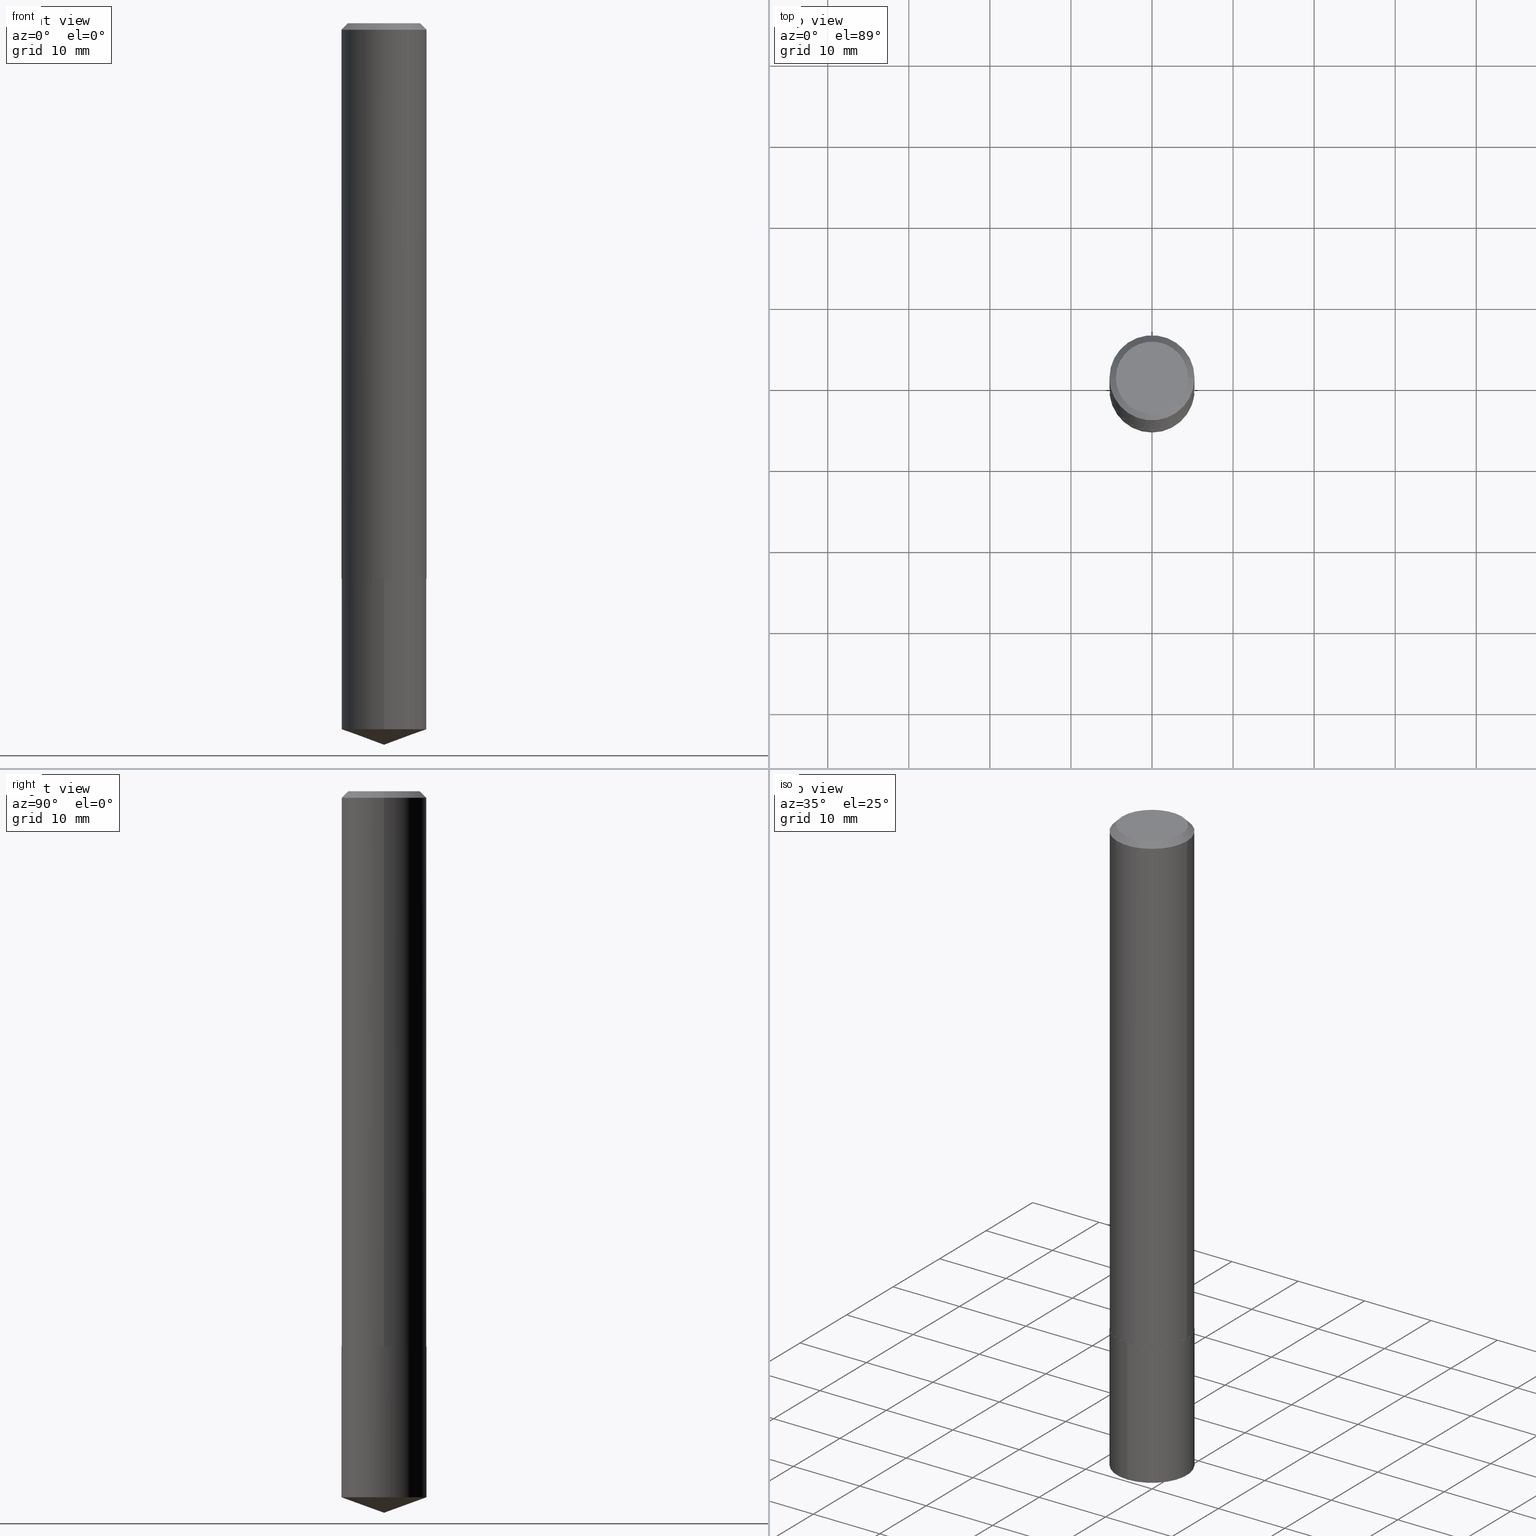
[diagram: canonical four-view strip — front | top / right | iso, engineering-drawing reading convention]
A machine part, canonical four-view strip (front | top / right | iso — engineering-drawing reading convention). The complete STEP part file that produces these views, byte-faithful:
ISO-10303-21;
HEADER;
FILE_DESCRIPTION (( 'STEP AP203' ),
    '1' );
FILE_NAME ('66038.STEP',
    '2024-04-23T12:50:00',
    ( '' ),
    ( '' ),
    'SwSTEP 2.0',
    'SolidWorks 2023',
    '' );
FILE_SCHEMA (( 'CONFIG_CONTROL_DESIGN' ));
ENDSEC;

DATA;
#1 = CALENDAR_DATE ( 2024, 23, 4 ) ;
#2 = ORIENTED_EDGE ( 'NONE', *, *, #63, .F. ) ;
#3 = VECTOR ( 'NONE', #378, 39.37007874015748143 ) ;
#4 = APPROVAL_ROLE ( '' ) ;
#5 = VERTEX_POINT ( 'NONE', #213 ) ;
#6 = COORDINATED_UNIVERSAL_TIME_OFFSET ( 5, 0, .BEHIND. ) ;
#7 = VERTEX_POINT ( 'NONE', #127 ) ;
#8 = ORIENTED_EDGE ( 'NONE', *, *, #160, .T. ) ;
#9 = DATE_AND_TIME ( #37, #111 ) ;
#10 = APPLICATION_CONTEXT ( 'configuration controlled 3d designs of mechanical parts and assemblies' ) ;
#11 = AXIS2_PLACEMENT_3D ( 'NONE', #209, #334, #274 ) ;
#12 = ORIENTED_EDGE ( 'NONE', *, *, #95, .T. ) ;
#13 = CC_DESIGN_PERSON_AND_ORGANIZATION_ASSIGNMENT ( #245, #370, ( #133 ) ) ;
#14 = FACE_OUTER_BOUND ( 'NONE', #147, .T. ) ;
#15 = DIRECTION ( 'NONE',  ( -2.440808573985819883E-29, 3.498155056596511424E-15, 1.000000000000000000 ) ) ;
#16 = DIRECTION ( 'NONE',  ( -6.982962677686265133E-15, -1.000000000000000000, 2.643297526525653668E-15 ) ) ;
#17 = CONICAL_SURFACE ( 'NONE', #261, 0.2067000000000003279, 0.7853981633972092480 ) ;
#18 = CARTESIAN_POINT ( 'NONE',  ( 0.2067000000000003279, -1.085745951940052607E-14, -2.696299999999999475 ) ) ;
#19 = FACE_OUTER_BOUND ( 'NONE', #249, .T. ) ;
#20 = CARTESIAN_POINT ( 'NONE',  ( -0.2067000000000000226, 1.334269593638902312E-15, -0.03125000000000022898 ) ) ;
#21 = EDGE_LOOP ( 'NONE', ( #67, #27, #238, #195 ) ) ;
#22 = EDGE_CURVE ( 'NONE', #235, #34, #89, .T. ) ;
#23 = FACE_OUTER_BOUND ( 'NONE', #311, .T. ) ;
#24 = DIRECTION ( 'NONE',  ( -2.445468806185136597E-29, 3.491481338843145583E-15, 1.000000000000000000 ) ) ;
#25 = CARTESIAN_POINT ( 'NONE',  ( 6.594940276520074658E-29, -9.415826874592193991E-15, -2.696799999999999642 ) ) ;
#26 = LINE ( 'NONE', #55, #351 ) ;
#27 = ORIENTED_EDGE ( 'NONE', *, *, #84, .T. ) ;
#28 = MANIFOLD_SOLID_BREP ( 'Body-Move/Copy2[1]', #39 ) ;
#29 = MECHANICAL_CONTEXT ( 'NONE', #10, 'mechanical' ) ;
#30 = ORIENTED_EDGE ( 'NONE', *, *, #256, .T. ) ;
#31 = EDGE_CURVE ( 'NONE', #235, #5, #341, .T. ) ;
#32 = DESIGN_CONTEXT ( 'detailed design', #192, 'design' ) ;
#33 = DATE_TIME_ROLE ( 'creation_date' ) ;
#34 = VERTEX_POINT ( 'NONE', #156 ) ;
#35 = APPROVAL_DATE_TIME ( #9, #45 ) ;
#36 = DIRECTION ( 'NONE',  ( 1.000000000000000000, -6.982962677686269077E-15, 0.000000000000000000 ) ) ;
#37 = CALENDAR_DATE ( 2024, 23, 4 ) ;
#38 = DIRECTION ( 'NONE',  ( -2.445468806185136597E-29, 3.491481338843145583E-15, 1.000000000000000000 ) ) ;
#39 = CLOSED_SHELL ( 'NONE', ( #201, #190, #171, #119, #240 ) ) ;
#40 = APPROVAL_PERSON_ORGANIZATION ( #342, #284, #360 ) ;
#41 = VERTEX_POINT ( 'NONE', #73 ) ;
#42 = DIMENSIONAL_EXPONENTS ( 1.000000000000000000, 0.000000000000000000, 0.000000000000000000, 0.000000000000000000, 0.000000000000000000, 0.000000000000000000, 0.000000000000000000 ) ;
#43 = CARTESIAN_POINT ( 'NONE',  ( 0.000000000000000000, 0.000000000000000000, 0.000000000000000000 ) ) ;
#44 = CARTESIAN_POINT ( 'NONE',  ( 1.468691834816192917E-15, 0.2066999999999905857, -2.696800000000000086 ) ) ;
#45 = APPROVAL ( #69, 'UNSPECIFIED' ) ;
#46 = DIRECTION ( 'NONE',  ( 0.7071067811863784858, -2.468850131080486462E-15, 0.7071067811867165487 ) ) ;
#47 = AXIS2_PLACEMENT_3D ( 'NONE', #185, #307, #36 ) ;
#48 = AXIS2_PLACEMENT_3D ( 'NONE', #200, #289, #93 ) ;
#49 = EDGE_LOOP ( 'NONE', ( #242, #150, #64, #343 ) ) ;
#50 = DIRECTION ( 'NONE',  ( -2.440808573985819883E-29, 3.498155056596511424E-15, 1.000000000000000000 ) ) ;
#51 = CC_DESIGN_PERSON_AND_ORGANIZATION_ASSIGNMENT ( #340, #362, ( #327 ) ) ;
#52 = DIRECTION ( 'NONE',  ( 6.676917655467975229E-15, 0.9396926207859106484, 0.3420201433256624401 ) ) ;
#53 = ADVANCED_FACE ( 'NONE', ( #14 ), #17, .T. ) ;
#54 = EDGE_LOOP ( 'NONE', ( #287, #159 ) ) ;
#55 = CARTESIAN_POINT ( 'NONE',  ( -1.443378385477685346E-15, -0.2067000000000094317, -2.696799999999998754 ) ) ;
#56 = CIRCLE ( 'NONE', #281, 0.2067000000000000226 ) ;
#57 = LOCAL_TIME ( 8, 50, 0.000000000000000000, #241 ) ;
#58 =( LENGTH_UNIT ( ) NAMED_UNIT ( * ) SI_UNIT ( $, .METRE. ) );
#59 = LENGTH_MEASURE_WITH_UNIT ( LENGTH_MEASURE( 0.02539999999999999897 ), #58 );
#60 = CARTESIAN_POINT ( 'NONE',  ( 0.2067000000000000226, -1.527173727978224681E-15, -0.03125000000000022898 ) ) ;
#61 = ORIENTED_EDGE ( 'NONE', *, *, #256, .F. ) ;
#62 = PERSON_AND_ORGANIZATION_ROLE ( 'creator' ) ;
#63 = EDGE_CURVE ( 'NONE', #189, #5, #122, .T. ) ;
#64 = ORIENTED_EDGE ( 'NONE', *, *, #106, .T. ) ;
#65 = EDGE_CURVE ( 'NONE', #319, #248, #367, .T. ) ;
#66 = APPLICATION_PROTOCOL_DEFINITION ( 'international standard', 'config_control_design', 1994, #10 ) ;
#67 = ORIENTED_EDGE ( 'NONE', *, *, #269, .T. ) ;
#68 = CONICAL_SURFACE ( 'NONE', #128, 108.1684023407342750, 1.221730476396033938 ) ;
#69 = APPROVAL_STATUS ( 'not_yet_approved' ) ;
#70 = ORIENTED_EDGE ( 'NONE', *, *, #148, .F. ) ;
#71 = ADVANCED_BREP_SHAPE_REPRESENTATION ( '66038', ( #28, #290, #11 ), #76 ) ;
#72 = APPROVAL_DATE_TIME ( #308, #284 ) ;
#73 = CARTESIAN_POINT ( 'NONE',  ( 0.1754499999999999948, -1.365424050843619950E-15, 1.085037064045460746E-17 ) ) ;
#74 = APPROVAL_STATUS ( 'not_yet_approved' ) ;
#75 = ORIENTED_EDGE ( 'NONE', *, *, #199, .T. ) ;
#76 =( GEOMETRIC_REPRESENTATION_CONTEXT ( 3 ) GLOBAL_UNCERTAINTY_ASSIGNED_CONTEXT ( ( #357 ) ) GLOBAL_UNIT_ASSIGNED_CONTEXT ( ( #173, #179, #218 ) ) REPRESENTATION_CONTEXT ( 'NONE', 'WORKASPACE' ) );
#77 = LINE ( 'NONE', #138, #169 ) ;
#78 = PRODUCT_DEFINITION_SHAPE ( 'NONE', 'NONE',  #327 ) ;
#79 = LINE ( 'NONE', #105, #247 ) ;
#80 = DIRECTION ( 'NONE',  ( -6.982962677686265133E-15, -1.000000000000000000, 2.643297526525653668E-15 ) ) ;
#81 = CARTESIAN_POINT ( 'NONE',  ( -0.2062000000000003830, -7.948038526280752696E-15, -2.696799999999999642 ) ) ;
#82 = AXIS2_PLACEMENT_3D ( 'NONE', #193, #15, #16 ) ;
#83 = AXIS2_PLACEMENT_3D ( 'NONE', #25, #116, #388 ) ;
#84 = EDGE_CURVE ( 'NONE', #319, #153, #220, .T. ) ;
#85 = EDGE_CURVE ( 'NONE', #363, #153, #355, .T. ) ;
#86 = CARTESIAN_POINT ( 'NONE',  ( -8.752990887088919443E-28, 1.254834522027134692E-13, 35.86617874015747987 ) ) ;
#87 = FACE_OUTER_BOUND ( 'NONE', #103, .T. ) ;
#88 = CARTESIAN_POINT ( 'NONE',  ( 0.000000000000000000, 0.000000000000000000, 0.000000000000000000 ) ) ;
#89 = CIRCLE ( 'NONE', #47, 0.2067000000000003279 ) ;
#90 = AXIS2_PLACEMENT_3D ( 'NONE', #262, #145, #265 ) ;
#91 = PRODUCT_RELATED_PRODUCT_CATEGORY ( 'detail', '', ( #133 ) ) ;
#92 = CARTESIAN_POINT ( 'NONE',  ( -1.443378385477685346E-15, -0.2067000000000094317, -2.696799999999998754 ) ) ;
#93 = DIRECTION ( 'NONE',  ( -6.982962677686265133E-15, -1.000000000000000000, 2.643297526525653668E-15 ) ) ;
#94 = CIRCLE ( 'NONE', #115, 0.1754499999999999948 ) ;
#95 = EDGE_CURVE ( 'NONE', #7, #248, #77, .T. ) ;
#96 = EDGE_LOOP ( 'NONE', ( #301, #30 ) ) ;
#97 = PERSON_AND_ORGANIZATION ( #293, #361 ) ;
#98 = EDGE_LOOP ( 'NONE', ( #187, #371, #298, #70 ) ) ;
#99 = APPROVAL_DATE_TIME ( #302, #255 ) ;
#100 = EDGE_LOOP ( 'NONE', ( #207, #75, #296, #2 ) ) ;
#101 = VECTOR ( 'NONE', #359, 39.37007874015748143 ) ;
#102 = PERSON_AND_ORGANIZATION_ROLE ( 'design_supplier' ) ;
#103 = EDGE_LOOP ( 'NONE', ( #333, #126 ) ) ;
#104 = DIRECTION ( 'NONE',  ( 1.000000000000000000, -6.982962677686265133E-15, 0.000000000000000000 ) ) ;
#105 = CARTESIAN_POINT ( 'NONE',  ( 8.577704998816139616E-29, -1.222119013873396115E-14, -3.503899999999999793 ) ) ;
#106 = EDGE_CURVE ( 'NONE', #181, #189, #109, .T. ) ;
#107 = DIRECTION ( 'NONE',  ( -2.445468806185136597E-29, 3.491481338843145583E-15, 1.000000000000000000 ) ) ;
#108 = FACE_OUTER_BOUND ( 'NONE', #21, .T. ) ;
#109 = LINE ( 'NONE', #20, #3 ) ;
#110 = CARTESIAN_POINT ( 'NONE',  ( -2.653424293675663351E-46, 3.788386661064719012E-32, 1.085037064044555097E-17 ) ) ;
#111 = LOCAL_TIME ( 8, 50, 0.000000000000000000, #306 ) ;
#112 = DIRECTION ( 'NONE',  ( -2.445468806185136597E-29, 3.491481338843145583E-15, 1.000000000000000000 ) ) ;
#113 = LINE ( 'NONE', #168, #263 ) ;
#114 = DIRECTION ( 'NONE',  ( -1.000000000000000000, 6.982962677686265922E-15, -4.876176775795935793E-29 ) ) ;
#115 = AXIS2_PLACEMENT_3D ( 'NONE', #231, #112, #230 ) ;
#116 = DIRECTION ( 'NONE',  ( 2.440808573985819603E-29, -3.498155056596511424E-15, -1.000000000000000000 ) ) ;
#117 = ORIENTED_EDGE ( 'NONE', *, *, #106, .F. ) ;
#118 = DIRECTION ( 'NONE',  ( -1.000000000000000000, 6.982962677686265133E-15, 0.000000000000000000 ) ) ;
#119 = ADVANCED_FACE ( 'NONE', ( #223 ), #280, .T. ) ;
#120 = ADVANCED_FACE ( 'NONE', ( #350 ), #140, .T. ) ;
#121 = CALENDAR_DATE ( 2024, 23, 4 ) ;
#122 = CIRCLE ( 'NONE', #317, 0.2067000000000000226 ) ;
#123 = AXIS2_PLACEMENT_3D ( 'NONE', #194, #107, #250 ) ;
#124 = ORIENTED_EDGE ( 'NONE', *, *, #217, .T. ) ;
#125 = APPROVAL_STATUS ( 'not_yet_approved' ) ;
#126 = ORIENTED_EDGE ( 'NONE', *, *, #148, .T. ) ;
#127 = CARTESIAN_POINT ( 'NONE',  ( 8.552349162388914203E-29, -1.225718550280851513E-14, -3.503899999999999793 ) ) ;
#128 = AXIS2_PLACEMENT_3D ( 'NONE', #253, #50, #315 ) ;
#129 = AXIS2_PLACEMENT_3D ( 'NONE', #88, #174, #202 ) ;
#130 = ORIENTED_EDGE ( 'NONE', *, *, #373, .T. ) ;
#131 = CARTESIAN_POINT ( 'NONE',  ( 7.642090019328607041E-31, -1.091087918388490883E-16, -0.03125000000000022898 ) ) ;
#132 = EDGE_CURVE ( 'NONE', #7, #319, #79, .T. ) ;
#133 = PRODUCT ( '66038', '66038', '', ( #29 ) ) ;
#134 = CARTESIAN_POINT ( 'NONE',  ( 1.468691834816211061E-15, 0.2066999999999905857, -2.696800000000000086 ) ) ;
#135 = CONICAL_SURFACE ( 'NONE', #90, 0.2067000000000000226, 0.7853981633974446153 ) ;
#136 = PRODUCT_DEFINITION_FORMATION_WITH_SPECIFIED_SOURCE ( 'ANY', '', #133, .NOT_KNOWN. ) ;
#137 = FACE_OUTER_BOUND ( 'NONE', #366, .T. ) ;
#138 = CARTESIAN_POINT ( 'NONE',  ( 8.552349162388914203E-29, -1.225718550280851513E-14, -3.503899999999999793 ) ) ;
#139 = DIRECTION ( 'NONE',  ( -2.440808573985819883E-29, 3.498155056596511424E-15, 1.000000000000000000 ) ) ;
#140 = CYLINDRICAL_SURFACE ( 'NONE', #232, 0.2067000000000001336 ) ;
#141 = PLANE ( 'NONE',  #83 ) ;
#142 = DIRECTION ( 'NONE',  ( 2.445468806185136597E-29, -3.491481338843145583E-15, -1.000000000000000000 ) ) ;
#143 = CARTESIAN_POINT ( 'NONE',  ( 0.2067000000000003279, -1.085745951940052607E-14, -2.696299999999999475 ) ) ;
#144 = CIRCLE ( 'NONE', #48, 0.2067000000000000226 ) ;
#145 = DIRECTION ( 'NONE',  ( 2.445468806185136597E-29, -3.491481338843145583E-15, -1.000000000000000000 ) ) ;
#146 = ADVANCED_FACE ( 'NONE', ( #285 ), #161, .F. ) ;
#147 = EDGE_LOOP ( 'NONE', ( #124, #379, #331, #335 ) ) ;
#148 = EDGE_CURVE ( 'NONE', #153, #363, #221, .T. ) ;
#149 = VERTEX_POINT ( 'NONE', #81 ) ;
#150 = ORIENTED_EDGE ( 'NONE', *, *, #216, .F. ) ;
#151 = AXIS2_PLACEMENT_3D ( 'NONE', #316, #226, #348 ) ;
#152 = COORDINATED_UNIVERSAL_TIME_OFFSET ( 5, 0, .BEHIND. ) ;
#153 = VERTEX_POINT ( 'NONE', #134 ) ;
#154 = CC_DESIGN_DATE_AND_TIME_ASSIGNMENT ( #243, #365, ( #277 ) ) ;
#155 = SHAPE_DEFINITION_REPRESENTATION ( #78, #71 ) ;
#156 = CARTESIAN_POINT ( 'NONE',  ( -0.2067000000000003279, -7.945389299106642284E-15, -2.696299999999999475 ) ) ;
#157 = DIRECTION ( 'NONE',  ( 1.000000000000000000, -6.982962677686269077E-15, 0.000000000000000000 ) ) ;
#158 = VECTOR ( 'NONE', #162, 39.37007874015748143 ) ;
#159 = ORIENTED_EDGE ( 'NONE', *, *, #268, .F. ) ;
#160 = EDGE_CURVE ( 'NONE', #322, #235, #283, .T. ) ;
#161 = PLANE ( 'NONE',  #257 ) ;
#162 = DIRECTION ( 'NONE',  ( -2.440808573985819883E-29, 3.498155056596511424E-15, 1.000000000000000000 ) ) ;
#163 = CONICAL_SURFACE ( 'NONE', #175, 108.1684023407342750, 1.221730476396033938 ) ;
#164 = LOCAL_TIME ( 8, 50, 0.000000000000000000, #6 ) ;
#165 = DIRECTION ( 'NONE',  ( 1.000000000000000000, -6.982962677686265922E-15, 4.876176775795935793E-29 ) ) ;
#166 = CARTESIAN_POINT ( 'NONE',  ( -0.1754499999999999948, 1.279715197719478945E-15, 1.085037064043679184E-17 ) ) ;
#167 = DIRECTION ( 'NONE',  ( -2.445468806185136597E-29, 3.491481338843145583E-15, 1.000000000000000000 ) ) ;
#168 = CARTESIAN_POINT ( 'NONE',  ( -0.2067000000000001336, 1.468691834816128034E-15, -1.016743883155689846E-29 ) ) ;
#169 = VECTOR ( 'NONE', #225, 39.37007874015748854 ) ;
#170 = CC_DESIGN_APPROVAL ( #284, ( #136 ) ) ;
#171 = ADVANCED_FACE ( 'NONE', ( #137 ), #68, .T. ) ;
#172 = LINE ( 'NONE', #60, #288 ) ;
#173 =( CONVERSION_BASED_UNIT ( 'INCH', #59 ) LENGTH_UNIT ( ) NAMED_UNIT ( #42 ) );
#174 = DIRECTION ( 'NONE',  ( -2.445468806185136597E-29, 3.491481338843145583E-15, 1.000000000000000000 ) ) ;
#175 = AXIS2_PLACEMENT_3D ( 'NONE', #86, #254, #198 ) ;
#176 = CARTESIAN_POINT ( 'NONE',  ( -0.2067000000000003279, -7.945389299106642284E-15, -2.696299999999999475 ) ) ;
#177 = SECURITY_CLASSIFICATION_LEVEL ( 'unclassified' ) ;
#178 = ORIENTED_EDGE ( 'NONE', *, *, #344, .T. ) ;
#179 =( NAMED_UNIT ( * ) PLANE_ANGLE_UNIT ( ) SI_UNIT ( $, .RADIAN. ) );
#180 = CC_DESIGN_PERSON_AND_ORGANIZATION_ASSIGNMENT ( #97, #102, ( #136 ) ) ;
#181 = VERTEX_POINT ( 'NONE', #166 ) ;
#182 = CLOSED_SHELL ( 'NONE', ( #313, #383, #53, #146, #384, #120, #299, #314 ) ) ;
#183 = AXIS2_PLACEMENT_3D ( 'NONE', #389, #386, #114 ) ;
#184 = APPROVAL_ROLE ( '' ) ;
#185 = CARTESIAN_POINT ( 'NONE',  ( 6.593717542116981856E-29, -9.414081133922771698E-15, -2.696299999999999475 ) ) ;
#186 = CALENDAR_DATE ( 2024, 23, 4 ) ;
#187 = ORIENTED_EDGE ( 'NONE', *, *, #84, .F. ) ;
#188 = EDGE_CURVE ( 'NONE', #5, #189, #56, .T. ) ;
#189 = VERTEX_POINT ( 'NONE', #345 ) ;
#190 = ADVANCED_FACE ( 'NONE', ( #19 ), #163, .T. ) ;
#191 = DIRECTION ( 'NONE',  ( -2.440808573985819883E-29, 3.498155056596511424E-15, 1.000000000000000000 ) ) ;
#192 = APPLICATION_CONTEXT ( 'configuration controlled 3d designs of mechanical parts and assemblies' ) ;
#193 = CARTESIAN_POINT ( 'NONE',  ( 6.594940276520074658E-29, -9.415826874592193991E-15, -2.696799999999999642 ) ) ;
#194 = CARTESIAN_POINT ( 'NONE',  ( 6.593717542116981856E-29, -9.414081133922771698E-15, -2.696299999999999475 ) ) ;
#195 = ORIENTED_EDGE ( 'NONE', *, *, #330, .F. ) ;
#196 = LOCAL_TIME ( 8, 50, 0.000000000000000000, #310 ) ;
#197 = DIRECTION ( 'NONE',  ( -6.982962677686265133E-15, -1.000000000000000000, 2.643297526525653668E-15 ) ) ;
#198 = DIRECTION ( 'NONE',  ( -6.982962677686265133E-15, -1.000000000000000000, 3.555975582372802743E-15 ) ) ;
#199 = EDGE_CURVE ( 'NONE', #34, #235, #337, .T. ) ;
#200 = CARTESIAN_POINT ( 'NONE',  ( 8.381288385710751773E-29, -1.197601235476794621E-14, -3.428667352577176697 ) ) ;
#201 = ADVANCED_FACE ( 'NONE', ( #108 ), #380, .T. ) ;
#202 = DIRECTION ( 'NONE',  ( 1.000000000000000000, -6.982962677686266711E-15, 4.876176775795936914E-29 ) ) ;
#203 = DIRECTION ( 'NONE',  ( -2.445468806185136597E-29, 3.491481338843145583E-15, 1.000000000000000000 ) ) ;
#204 = PLANE ( 'NONE',  #183 ) ;
#205 = ORIENTED_EDGE ( 'NONE', *, *, #269, .F. ) ;
#206 = CARTESIAN_POINT ( 'NONE',  ( 0.2062000000000003830, -1.085571377873110535E-14, -2.696799999999999642 ) ) ;
#207 = ORIENTED_EDGE ( 'NONE', *, *, #373, .F. ) ;
#208 = AXIS2_PLACEMENT_3D ( 'NONE', #259, #203, #353 ) ;
#209 = CARTESIAN_POINT ( 'NONE',  ( 0.000000000000000000, 0.000000000000000000, 0.000000000000000000 ) ) ;
#210 = ORIENTED_EDGE ( 'NONE', *, *, #132, .F. ) ;
#211 = ORIENTED_EDGE ( 'NONE', *, *, #199, .F. ) ;
#212 = PERSON_AND_ORGANIZATION ( #293, #361 ) ;
#213 = CARTESIAN_POINT ( 'NONE',  ( 0.2067000000000000226, -1.552487177316600316E-15, -0.03125000000000022898 ) ) ;
#214 = CC_DESIGN_SECURITY_CLASSIFICATION ( #277, ( #136 ) ) ;
#215 = ORIENTED_EDGE ( 'NONE', *, *, #31, .F. ) ;
#216 = EDGE_CURVE ( 'NONE', #181, #41, #305, .T. ) ;
#217 = EDGE_CURVE ( 'NONE', #322, #149, #381, .T. ) ;
#218 =( NAMED_UNIT ( * ) SI_UNIT ( $, .STERADIAN. ) SOLID_ANGLE_UNIT ( ) );
#219 = CARTESIAN_POINT ( 'NONE',  ( 8.381288385710751773E-29, -1.197601235476794621E-14, -3.428667352577176697 ) ) ;
#220 = LINE ( 'NONE', #44, #158 ) ;
#221 = CIRCLE ( 'NONE', #82, 0.2067000000000000226 ) ;
#222 = APPROVAL_PERSON_ORGANIZATION ( #266, #255, #4 ) ;
#223 = FACE_OUTER_BOUND ( 'NONE', #98, .T. ) ;
#224 = CC_DESIGN_PERSON_AND_ORGANIZATION_ASSIGNMENT ( #336, #272, ( #277 ) ) ;
#225 = DIRECTION ( 'NONE',  ( -6.561838499445207162E-15, -0.9396926207859082059, 0.3420201433256689350 ) ) ;
#226 = DIRECTION ( 'NONE',  ( -2.440808573985819883E-29, 3.498155056596511424E-15, 1.000000000000000000 ) ) ;
#227 = CC_DESIGN_APPROVAL ( #255, ( #327 ) ) ;
#228 = DIRECTION ( 'NONE',  ( -2.445468806185136597E-29, 3.491481338843145583E-15, 1.000000000000000000 ) ) ;
#229 = EDGE_CURVE ( 'NONE', #149, #34, #291, .T. ) ;
#230 = DIRECTION ( 'NONE',  ( 1.000000000000000000, -6.982962677686267499E-15, 4.875944331572354800E-29 ) ) ;
#231 = CARTESIAN_POINT ( 'NONE',  ( -2.653424293675663351E-46, 3.788386661064719012E-32, 1.085037064044555097E-17 ) ) ;
#232 = AXIS2_PLACEMENT_3D ( 'NONE', #43, #352, #375 ) ;
#233 = AXIS2_PLACEMENT_3D ( 'NONE', #110, #228, #321 ) ;
#234 = FACE_OUTER_BOUND ( 'NONE', #96, .T. ) ;
#235 = VERTEX_POINT ( 'NONE', #143 ) ;
#236 = CARTESIAN_POINT ( 'NONE',  ( 6.593717542116981856E-29, -9.414081133922771698E-15, -2.696299999999999475 ) ) ;
#237 = DATE_AND_TIME ( #121, #196 ) ;
#238 = ORIENTED_EDGE ( 'NONE', *, *, #85, .F. ) ;
#239 = AXIS2_PLACEMENT_3D ( 'NONE', #260, #142, #118 ) ;
#240 = ADVANCED_FACE ( 'NONE', ( #87 ), #141, .F. ) ;
#241 = COORDINATED_UNIVERSAL_TIME_OFFSET ( 5, 0, .BEHIND. ) ;
#242 = ORIENTED_EDGE ( 'NONE', *, *, #344, .F. ) ;
#243 = DATE_AND_TIME ( #186, #164 ) ;
#244 = ORIENTED_EDGE ( 'NONE', *, *, #188, .T. ) ;
#245 = PERSON_AND_ORGANIZATION ( #293, #361 ) ;
#246 = CARTESIAN_POINT ( 'NONE',  ( 0.2067000000000001336, -1.443378385477752202E-15, 1.007905739557020761E-29 ) ) ;
#247 = VECTOR ( 'NONE', #52, 39.37007874015748143 ) ;
#248 = VERTEX_POINT ( 'NONE', #385 ) ;
#249 = EDGE_LOOP ( 'NONE', ( #273, #369, #205 ) ) ;
#250 = DIRECTION ( 'NONE',  ( 1.000000000000000000, -6.982962677686269077E-15, 0.000000000000000000 ) ) ;
#251 = AXIS2_PLACEMENT_3D ( 'NONE', #312, #191, #197 ) ;
#252 = CARTESIAN_POINT ( 'NONE',  ( 7.642090019328607041E-31, -1.091087918388490883E-16, -0.03125000000000022898 ) ) ;
#253 = CARTESIAN_POINT ( 'NONE',  ( -8.752990887088919443E-28, 1.254834522027134692E-13, 35.86617874015747987 ) ) ;
#254 = DIRECTION ( 'NONE',  ( -2.440808573985819883E-29, 3.498155056596511424E-15, 1.000000000000000000 ) ) ;
#255 = APPROVAL ( #74, 'UNSPECIFIED' ) ;
#256 = EDGE_CURVE ( 'NONE', #41, #181, #94, .T. ) ;
#257 = AXIS2_PLACEMENT_3D ( 'NONE', #279, #320, #165 ) ;
#258 = DIRECTION ( 'NONE',  ( -2.445468806185136877E-29, 3.491481338843145188E-15, 1.000000000000000000 ) ) ;
#259 = CARTESIAN_POINT ( 'NONE',  ( 6.594940276520074658E-29, -9.415826874592193991E-15, -2.696799999999999642 ) ) ;
#260 = CARTESIAN_POINT ( 'NONE',  ( 7.642090019328607041E-31, -1.091087918388490883E-16, -0.03125000000000022898 ) ) ;
#261 = AXIS2_PLACEMENT_3D ( 'NONE', #309, #38, #157 ) ;
#262 = CARTESIAN_POINT ( 'NONE',  ( 7.642090019328607041E-31, -1.091087918388490883E-16, -0.03125000000000022898 ) ) ;
#263 = VECTOR ( 'NONE', #258, 39.37007874015748143 ) ;
#264 = ORIENTED_EDGE ( 'NONE', *, *, #22, .T. ) ;
#265 = DIRECTION ( 'NONE',  ( -1.000000000000000000, 6.982962677686265133E-15, 0.000000000000000000 ) ) ;
#266 = PERSON_AND_ORGANIZATION ( #293, #361 ) ;
#267 = ORIENTED_EDGE ( 'NONE', *, *, #188, .F. ) ;
#268 = EDGE_CURVE ( 'NONE', #149, #322, #318, .T. ) ;
#269 = EDGE_CURVE ( 'NONE', #248, #319, #144, .T. ) ;
#270 = APPLICATION_PROTOCOL_DEFINITION ( 'international standard', 'config_control_design', 1994, #192 ) ;
#271 = EDGE_LOOP ( 'NONE', ( #264, #130, #267, #215 ) ) ;
#272 = PERSON_AND_ORGANIZATION_ROLE ( 'classification_officer' ) ;
#273 = ORIENTED_EDGE ( 'NONE', *, *, #95, .F. ) ;
#274 = DIRECTION ( 'NONE',  ( 1.000000000000000000, 0.000000000000000000, 0.000000000000000000 ) ) ;
#275 = ORIENTED_EDGE ( 'NONE', *, *, #65, .F. ) ;
#276 = DIRECTION ( 'NONE',  ( -2.445468806185136597E-29, 3.491481338843145583E-15, 1.000000000000000000 ) ) ;
#277 = SECURITY_CLASSIFICATION ( '', '', #177 ) ;
#278 = DIRECTION ( 'NONE',  ( -2.445468806185136877E-29, 3.491481338843145188E-15, 1.000000000000000000 ) ) ;
#279 = CARTESIAN_POINT ( 'NONE',  ( 6.594940276520074658E-29, -9.415826874592193991E-15, -2.696799999999999642 ) ) ;
#280 = CYLINDRICAL_SURFACE ( 'NONE', #151, 0.2067000000000000226 ) ;
#281 = AXIS2_PLACEMENT_3D ( 'NONE', #252, #167, #377 ) ;
#282 = AXIS2_PLACEMENT_3D ( 'NONE', #236, #297, #324 ) ;
#283 = LINE ( 'NONE', #18, #303 ) ;
#284 = APPROVAL ( #125, 'UNSPECIFIED' ) ;
#285 = FACE_OUTER_BOUND ( 'NONE', #54, .T. ) ;
#286 = DIRECTION ( 'NONE',  ( -2.440808573985819883E-29, 3.498155056596511424E-15, 1.000000000000000000 ) ) ;
#287 = ORIENTED_EDGE ( 'NONE', *, *, #217, .F. ) ;
#288 = VECTOR ( 'NONE', #358, 39.37007874015748143 ) ;
#289 = DIRECTION ( 'NONE',  ( -2.440808573985819883E-29, 3.498155056596511424E-15, 1.000000000000000000 ) ) ;
#290 = MANIFOLD_SOLID_BREP ( 'Body-Move/Copy2[2]', #182 ) ;
#291 = LINE ( 'NONE', #176, #101 ) ;
#292 = FACE_OUTER_BOUND ( 'NONE', #390, .T. ) ;
#293 = PERSON ( 'UNSPECIFIED', 'UNSPECIFIED', 'UNSPECIFIED', ('UNSPECIFIED'), ('UNSPECIFIED'), ('UNSPECIFIED') ) ;
#294 = VECTOR ( 'NONE', #278, 39.37007874015748143 ) ;
#295 = DIRECTION ( 'NONE',  ( 1.000000000000000000, -6.982962677686269866E-15, 0.000000000000000000 ) ) ;
#296 = ORIENTED_EDGE ( 'NONE', *, *, #31, .T. ) ;
#297 = DIRECTION ( 'NONE',  ( -2.445468806185136597E-29, 3.491481338843145583E-15, 1.000000000000000000 ) ) ;
#298 = ORIENTED_EDGE ( 'NONE', *, *, #330, .T. ) ;
#299 = ADVANCED_FACE ( 'NONE', ( #325 ), #135, .T. ) ;
#300 = CALENDAR_DATE ( 2024, 23, 4 ) ;
#301 = ORIENTED_EDGE ( 'NONE', *, *, #216, .T. ) ;
#302 = DATE_AND_TIME ( #1, #57 ) ;
#303 = VECTOR ( 'NONE', #46, 39.37007874015748143 ) ;
#304 = ORIENTED_EDGE ( 'NONE', *, *, #229, .F. ) ;
#305 = CIRCLE ( 'NONE', #233, 0.1754499999999999948 ) ;
#306 = COORDINATED_UNIVERSAL_TIME_OFFSET ( 5, 0, .BEHIND. ) ;
#307 = DIRECTION ( 'NONE',  ( -2.445468806185136597E-29, 3.491481338843145583E-15, 1.000000000000000000 ) ) ;
#308 = DATE_AND_TIME ( #300, #347 ) ;
#309 = CARTESIAN_POINT ( 'NONE',  ( 6.593717542116981856E-29, -9.414081133922771698E-15, -2.696299999999999475 ) ) ;
#310 = COORDINATED_UNIVERSAL_TIME_OFFSET ( 5, 0, .BEHIND. ) ;
#311 = EDGE_LOOP ( 'NONE', ( #61, #178, #244, #117 ) ) ;
#312 = CARTESIAN_POINT ( 'NONE',  ( 6.594940276520074658E-29, -9.415826874592193991E-15, -2.696799999999999642 ) ) ;
#313 = ADVANCED_FACE ( 'NONE', ( #23 ), #338, .T. ) ;
#314 = ADVANCED_FACE ( 'NONE', ( #234 ), #204, .F. ) ;
#315 = DIRECTION ( 'NONE',  ( -6.982962677686265133E-15, -1.000000000000000000, 3.555975582372802743E-15 ) ) ;
#316 = CARTESIAN_POINT ( 'NONE',  ( 6.594940276520074658E-29, -9.415826874592193991E-15, -2.696799999999999642 ) ) ;
#317 = AXIS2_PLACEMENT_3D ( 'NONE', #131, #276, #104 ) ;
#318 = CIRCLE ( 'NONE', #356, 0.2062000000000003830 ) ;
#319 = VERTEX_POINT ( 'NONE', #323 ) ;
#320 = DIRECTION ( 'NONE',  ( -2.438088387897960049E-29, 3.491481338843145188E-15, 1.000000000000000000 ) ) ;
#321 = DIRECTION ( 'NONE',  ( 1.000000000000000000, -6.982962677686267499E-15, 4.875944331572354800E-29 ) ) ;
#322 = VERTEX_POINT ( 'NONE', #206 ) ;
#323 = CARTESIAN_POINT ( 'NONE',  ( 1.468691834816210075E-15, 0.2066999999999879489, -3.428667352577177141 ) ) ;
#324 = DIRECTION ( 'NONE',  ( 1.000000000000000000, -6.982962677686269077E-15, 0.000000000000000000 ) ) ;
#325 = FACE_OUTER_BOUND ( 'NONE', #49, .T. ) ;
#326 = ORIENTED_EDGE ( 'NONE', *, *, #268, .T. ) ;
#327 = PRODUCT_DEFINITION ( 'UNKNOWN', '', #136, #32 ) ;
#328 = DIRECTION ( 'NONE',  ( -2.440808573985819883E-29, 3.498155056596511424E-15, 1.000000000000000000 ) ) ;
#329 = CC_DESIGN_APPROVAL ( #45, ( #277 ) ) ;
#330 = EDGE_CURVE ( 'NONE', #248, #363, #26, .T. ) ;
#331 = ORIENTED_EDGE ( 'NONE', *, *, #22, .F. ) ;
#332 = PERSON_AND_ORGANIZATION ( #293, #361 ) ;
#333 = ORIENTED_EDGE ( 'NONE', *, *, #85, .T. ) ;
#334 = DIRECTION ( 'NONE',  ( 0.000000000000000000, 0.000000000000000000, 1.000000000000000000 ) ) ;
#335 = ORIENTED_EDGE ( 'NONE', *, *, #160, .F. ) ;
#336 = PERSON_AND_ORGANIZATION ( #293, #361 ) ;
#337 = CIRCLE ( 'NONE', #123, 0.2067000000000003279 ) ;
#338 = CONICAL_SURFACE ( 'NONE', #239, 0.2067000000000000226, 0.7853981633974446153 ) ;
#339 = CARTESIAN_POINT ( 'NONE',  ( 6.594940276520074658E-29, -9.415826874592193991E-15, -2.696799999999999642 ) ) ;
#340 = PERSON_AND_ORGANIZATION ( #293, #361 ) ;
#341 = LINE ( 'NONE', #246, #294 ) ;
#342 = PERSON_AND_ORGANIZATION ( #293, #361 ) ;
#343 = ORIENTED_EDGE ( 'NONE', *, *, #63, .T. ) ;
#344 = EDGE_CURVE ( 'NONE', #41, #5, #172, .T. ) ;
#345 = CARTESIAN_POINT ( 'NONE',  ( -0.2067000000000000226, -3.292903128064680985E-15, -0.03125000000000022898 ) ) ;
#346 = AXIS2_PLACEMENT_3D ( 'NONE', #219, #139, #374 ) ;
#347 = LOCAL_TIME ( 8, 50, 0.000000000000000000, #152 ) ;
#348 = DIRECTION ( 'NONE',  ( -6.982962677686265133E-15, -1.000000000000000000, 2.643297526525653668E-15 ) ) ;
#349 = CARTESIAN_POINT ( 'NONE',  ( 6.594940276520074658E-29, -9.415826874592193991E-15, -2.696799999999999642 ) ) ;
#350 = FACE_OUTER_BOUND ( 'NONE', #100, .T. ) ;
#351 = VECTOR ( 'NONE', #328, 39.37007874015748143 ) ;
#352 = DIRECTION ( 'NONE',  ( -2.445468806185136597E-29, 3.491481338843145583E-15, 1.000000000000000000 ) ) ;
#353 = DIRECTION ( 'NONE',  ( 1.000000000000000000, -6.982962677686269866E-15, 0.000000000000000000 ) ) ;
#354 = FACE_OUTER_BOUND ( 'NONE', #271, .T. ) ;
#355 = CIRCLE ( 'NONE', #251, 0.2067000000000000226 ) ;
#356 = AXIS2_PLACEMENT_3D ( 'NONE', #339, #24, #295 ) ;
#357 = UNCERTAINTY_MEASURE_WITH_UNIT (LENGTH_MEASURE( 1.000000000000000082E-05 ), #173, 'distance_accuracy_value', 'NONE');
#358 = DIRECTION ( 'NONE',  ( 0.7071067811865449082, -7.319954787623246579E-15, -0.7071067811865501263 ) ) ;
#359 = DIRECTION ( 'NONE',  ( -0.7071067811863784858, 7.493145998869743582E-15, 0.7071067811867165487 ) ) ;
#360 = APPROVAL_ROLE ( '' ) ;
#361 = ORGANIZATION ( 'UNSPECIFIED', 'UNSPECIFIED', '' ) ;
#362 = PERSON_AND_ORGANIZATION_ROLE ( 'creator' ) ;
#363 = VERTEX_POINT ( 'NONE', #92 ) ;
#364 = CC_DESIGN_PERSON_AND_ORGANIZATION_ASSIGNMENT ( #332, #62, ( #136 ) ) ;
#365 = DATE_TIME_ROLE ( 'classification_date' ) ;
#366 = EDGE_LOOP ( 'NONE', ( #210, #12, #275 ) ) ;
#367 = CIRCLE ( 'NONE', #346, 0.2067000000000000226 ) ;
#368 = CONICAL_SURFACE ( 'NONE', #282, 0.2067000000000003279, 0.7853981633972092480 ) ;
#369 = ORIENTED_EDGE ( 'NONE', *, *, #132, .T. ) ;
#370 = PERSON_AND_ORGANIZATION_ROLE ( 'design_owner' ) ;
#371 = ORIENTED_EDGE ( 'NONE', *, *, #65, .T. ) ;
#372 = CC_DESIGN_DATE_AND_TIME_ASSIGNMENT ( #237, #33, ( #327 ) ) ;
#373 = EDGE_CURVE ( 'NONE', #34, #189, #113, .T. ) ;
#374 = DIRECTION ( 'NONE',  ( -6.982962677686265133E-15, -1.000000000000000000, 2.643297526525653668E-15 ) ) ;
#375 = DIRECTION ( 'NONE',  ( 1.000000000000000000, -6.982962677686266711E-15, 4.876176775795936914E-29 ) ) ;
#376 = AXIS2_PLACEMENT_3D ( 'NONE', #349, #286, #80 ) ;
#377 = DIRECTION ( 'NONE',  ( 1.000000000000000000, -6.982962677686265133E-15, 0.000000000000000000 ) ) ;
#378 = DIRECTION ( 'NONE',  ( -0.7071067811865449082, 2.468850131082229450E-15, -0.7071067811865501263 ) ) ;
#379 = ORIENTED_EDGE ( 'NONE', *, *, #229, .T. ) ;
#380 = CYLINDRICAL_SURFACE ( 'NONE', #376, 0.2067000000000000226 ) ;
#381 = CIRCLE ( 'NONE', #208, 0.2062000000000003830 ) ;
#382 = CYLINDRICAL_SURFACE ( 'NONE', #129, 0.2067000000000001336 ) ;
#383 = ADVANCED_FACE ( 'NONE', ( #354 ), #382, .T. ) ;
#384 = ADVANCED_FACE ( 'NONE', ( #292 ), #368, .T. ) ;
#385 = CARTESIAN_POINT ( 'NONE',  ( -1.443378385477667202E-15, -0.2067000000000119297, -3.428667352577175809 ) ) ;
#386 = DIRECTION ( 'NONE',  ( 2.438088387897960049E-29, -3.491481338843145188E-15, -1.000000000000000000 ) ) ;
#387 = APPROVAL_PERSON_ORGANIZATION ( #212, #45, #184 ) ;
#388 = DIRECTION ( 'NONE',  ( 6.982962677686265922E-15, 1.000000000000000000, -3.498155056596511424E-15 ) ) ;
#389 = CARTESIAN_POINT ( 'NONE',  ( -1.326712146837831676E-46, 1.894193330532359506E-32, 5.425185320222775483E-18 ) ) ;
#390 = EDGE_LOOP ( 'NONE', ( #304, #326, #8, #211 ) ) ;
ENDSEC;
END-ISO-10303-21;
